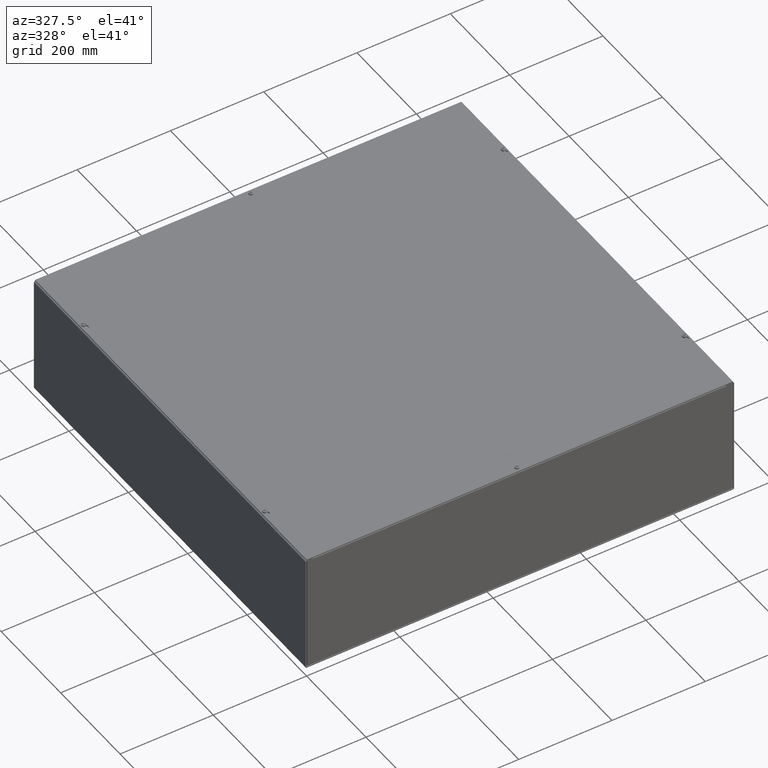
[diagram: clean part render]
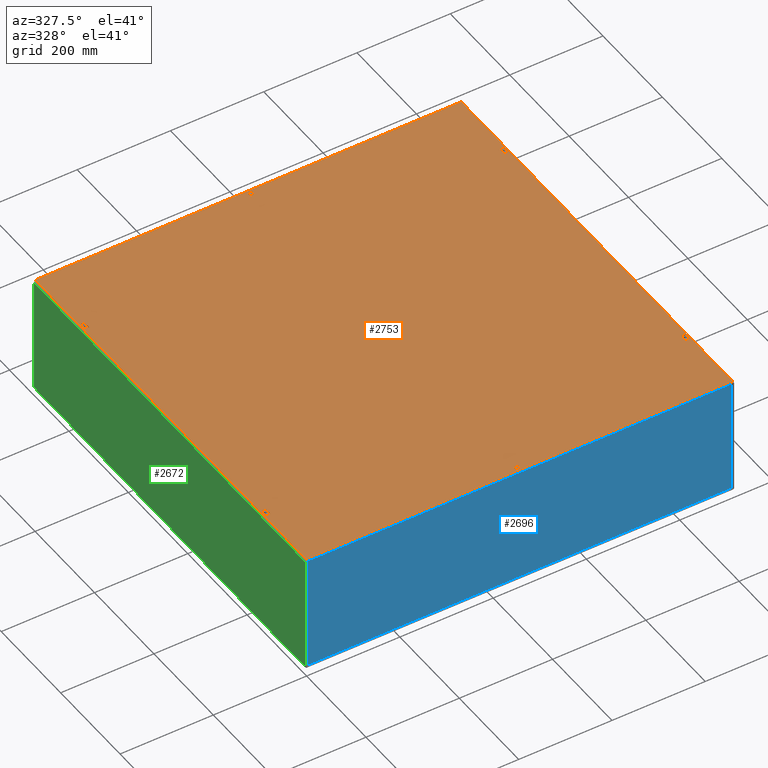
[diagram: same view with three faces highlighted in distinct colors, each labeled with its STEP entity id]
A machine part, auxiliary view with three faces highlighted in distinct colors.
Their STEP definitions:

[orange] entity #2753 — the highlighted planar face has unit normal (-0, -0, 1).
#205=PLANE('',#2979);
#372=LINE('',#4347,#592);
#376=LINE('',#4359,#596);
#380=LINE('',#4371,#600);
#384=LINE('',#4383,#604);
#388=LINE('',#4395,#608);
#392=LINE('',#4407,#612);
#396=LINE('',#4419,#616);
#400=LINE('',#4431,#620);
#402=LINE('',#4439,#622);
#406=LINE('',#4447,#626);
#409=LINE('',#4453,#629);
#412=LINE('',#4458,#632);
#592=VECTOR('',#3490,0.26995740404738);
#596=VECTOR('',#3502,0.269957404047382);
#600=VECTOR('',#3514,0.269957404047378);
#604=VECTOR('',#3526,0.26995740404738);
#608=VECTOR('',#3538,0.26995740404738);
#612=VECTOR('',#3550,0.269957404047381);
#616=VECTOR('',#3562,0.26995740404738);
#620=VECTOR('',#3574,0.269957404047382);
#622=VECTOR('',#3584,36.);
#626=VECTOR('',#3590,36.);
#629=VECTOR('',#3595,36.);
#632=VECTOR('',#3600,36.);
#710=FACE_BOUND('',#1019,.T.);
#711=FACE_BOUND('',#1020,.T.);
#712=FACE_BOUND('',#1021,.T.);
#713=FACE_BOUND('',#1022,.T.);
#714=FACE_BOUND('',#1023,.T.);
#715=FACE_BOUND('',#1024,.T.);
#716=FACE_BOUND('',#1025,.T.);
#1019=EDGE_LOOP('',(#2250));
#1020=EDGE_LOOP('',(#2251));
#1021=EDGE_LOOP('',(#2252,#2253,#2254,#2255));
#1022=EDGE_LOOP('',(#2256,#2257,#2258,#2259));
#1023=EDGE_LOOP('',(#2260,#2261,#2262,#2263));
#1024=EDGE_LOOP('',(#2264,#2265,#2266,#2267));
#1025=EDGE_LOOP('',(#2268,#2269,#2270,#2271));
#1113=CIRCLE('',#2938,0.156);
#1115=CIRCLE('',#2941,0.156);
#1117=CIRCLE('',#2945,0.203);
#1119=CIRCLE('',#2949,0.125);
#1121=CIRCLE('',#2953,0.203);
#1123=CIRCLE('',#2957,0.125);
#1125=CIRCLE('',#2961,0.203);
#1127=CIRCLE('',#2965,0.125);
#1129=CIRCLE('',#2969,0.203);
#1131=CIRCLE('',#2973,0.125);
#1281=VERTEX_POINT('',#4333);
#1283=VERTEX_POINT('',#4338);
#1286=VERTEX_POINT('',#4344);
#1287=VERTEX_POINT('',#4346);
#1289=VERTEX_POINT('',#4352);
#1291=VERTEX_POINT('',#4358);
#1294=VERTEX_POINT('',#4368);
#1295=VERTEX_POINT('',#4370);
#1297=VERTEX_POINT('',#4376);
#1299=VERTEX_POINT('',#4382);
#1302=VERTEX_POINT('',#4392);
#1303=VERTEX_POINT('',#4394);
#1305=VERTEX_POINT('',#4400);
#1307=VERTEX_POINT('',#4406);
#1310=VERTEX_POINT('',#4416);
#1311=VERTEX_POINT('',#4418);
#1313=VERTEX_POINT('',#4424);
#1315=VERTEX_POINT('',#4430);
#1316=VERTEX_POINT('',#4437);
#1317=VERTEX_POINT('',#4438);
#1320=VERTEX_POINT('',#4446);
#1322=VERTEX_POINT('',#4452);
#1589=EDGE_CURVE('',#1281,#1281,#1113,.T.);
#1591=EDGE_CURVE('',#1283,#1283,#1115,.T.);
#1594=EDGE_CURVE('',#1287,#1286,#372,.T.);
#1597=EDGE_CURVE('',#1289,#1287,#1117,.T.);
#1600=EDGE_CURVE('',#1291,#1289,#376,.T.);
#1603=EDGE_CURVE('',#1286,#1291,#1119,.T.);
#1606=EDGE_CURVE('',#1295,#1294,#380,.T.);
#1609=EDGE_CURVE('',#1297,#1295,#1121,.T.);
#1612=EDGE_CURVE('',#1299,#1297,#384,.T.);
#1615=EDGE_CURVE('',#1294,#1299,#1123,.T.);
#1618=EDGE_CURVE('',#1303,#1302,#388,.T.);
#1621=EDGE_CURVE('',#1305,#1303,#1125,.T.);
#1624=EDGE_CURVE('',#1307,#1305,#392,.T.);
#1627=EDGE_CURVE('',#1302,#1307,#1127,.T.);
#1630=EDGE_CURVE('',#1311,#1310,#396,.T.);
#1633=EDGE_CURVE('',#1313,#1311,#1129,.T.);
#1636=EDGE_CURVE('',#1315,#1313,#400,.T.);
#1639=EDGE_CURVE('',#1310,#1315,#1131,.T.);
#1640=EDGE_CURVE('',#1316,#1317,#402,.T.);
#1644=EDGE_CURVE('',#1317,#1320,#406,.T.);
#1647=EDGE_CURVE('',#1320,#1322,#409,.T.);
#1650=EDGE_CURVE('',#1322,#1316,#412,.T.);
#2250=ORIENTED_EDGE('',*,*,#1589,.T.);
#2251=ORIENTED_EDGE('',*,*,#1591,.T.);
#2252=ORIENTED_EDGE('',*,*,#1594,.T.);
#2253=ORIENTED_EDGE('',*,*,#1603,.T.);
#2254=ORIENTED_EDGE('',*,*,#1600,.T.);
#2255=ORIENTED_EDGE('',*,*,#1597,.T.);
#2256=ORIENTED_EDGE('',*,*,#1606,.T.);
#2257=ORIENTED_EDGE('',*,*,#1615,.T.);
#2258=ORIENTED_EDGE('',*,*,#1612,.T.);
#2259=ORIENTED_EDGE('',*,*,#1609,.T.);
#2260=ORIENTED_EDGE('',*,*,#1618,.T.);
#2261=ORIENTED_EDGE('',*,*,#1627,.T.);
#2262=ORIENTED_EDGE('',*,*,#1624,.T.);
#2263=ORIENTED_EDGE('',*,*,#1621,.T.);
#2264=ORIENTED_EDGE('',*,*,#1630,.T.);
#2265=ORIENTED_EDGE('',*,*,#1639,.T.);
#2266=ORIENTED_EDGE('',*,*,#1636,.T.);
#2267=ORIENTED_EDGE('',*,*,#1633,.T.);
#2268=ORIENTED_EDGE('',*,*,#1640,.F.);
#2269=ORIENTED_EDGE('',*,*,#1650,.F.);
#2270=ORIENTED_EDGE('',*,*,#1647,.F.);
#2271=ORIENTED_EDGE('',*,*,#1644,.F.);
#2753=ADVANCED_FACE('',(#710,#711,#712,#713,#714,#715,#716),#205,.T.);
#2938=AXIS2_PLACEMENT_3D('',#4334,#3478,#3479);
#2941=AXIS2_PLACEMENT_3D('',#4339,#3484,#3485);
#2945=AXIS2_PLACEMENT_3D('',#4353,#3496,#3497);
#2949=AXIS2_PLACEMENT_3D('',#4363,#3508,#3509);
#2953=AXIS2_PLACEMENT_3D('',#4377,#3520,#3521);
#2957=AXIS2_PLACEMENT_3D('',#4387,#3532,#3533);
#2961=AXIS2_PLACEMENT_3D('',#4401,#3544,#3545);
#2965=AXIS2_PLACEMENT_3D('',#4411,#3556,#3557);
#2969=AXIS2_PLACEMENT_3D('',#4425,#3568,#3569);
#2973=AXIS2_PLACEMENT_3D('',#4435,#3580,#3581);
#2979=AXIS2_PLACEMENT_3D('',#4461,#3604,#3605);
#3478=DIRECTION('center_axis',(0.,0.,-1.));
#3479=DIRECTION('ref_axis',(-1.,0.,0.));
#3484=DIRECTION('center_axis',(0.,0.,-1.));
#3485=DIRECTION('ref_axis',(-1.,0.,0.));
#3490=DIRECTION('',(0.277580071174384,0.960702505506686,0.));
#3496=DIRECTION('center_axis',(0.,0.,-1.));
#3497=DIRECTION('ref_axis',(-0.96070250550669,0.277580071174369,0.));
#3502=DIRECTION('',(0.277580071174384,-0.960702505506686,0.));
#3508=DIRECTION('center_axis',(0.,0.,-1.));
#3509=DIRECTION('ref_axis',(0.960702505506687,0.277580071174379,0.));
#3514=DIRECTION('',(0.277580071174384,0.960702505506686,0.));
#3520=DIRECTION('center_axis',(0.,0.,-1.));
#3521=DIRECTION('ref_axis',(-0.96070250550669,0.277580071174369,0.));
#3526=DIRECTION('',(0.277580071174384,-0.960702505506686,0.));
#3532=DIRECTION('center_axis',(0.,0.,-1.));
#3533=DIRECTION('ref_axis',(0.960702505506687,0.277580071174379,0.));
#3538=DIRECTION('',(0.277580071174384,0.960702505506686,0.));
#3544=DIRECTION('center_axis',(0.,0.,-1.));
#3545=DIRECTION('ref_axis',(-0.96070250550669,0.277580071174369,0.));
#3550=DIRECTION('',(0.277580071174384,-0.960702505506686,0.));
#3556=DIRECTION('center_axis',(0.,0.,-1.));
#3557=DIRECTION('ref_axis',(0.960702505506687,0.277580071174379,0.));
#3562=DIRECTION('',(0.277580071174384,0.960702505506686,0.));
#3568=DIRECTION('center_axis',(0.,0.,-1.));
#3569=DIRECTION('ref_axis',(-0.96070250550669,0.277580071174369,0.));
#3574=DIRECTION('',(0.277580071174384,-0.960702505506686,0.));
#3580=DIRECTION('center_axis',(0.,0.,-1.));
#3581=DIRECTION('ref_axis',(0.960702505506687,0.277580071174379,0.));
#3584=DIRECTION('',(-3.06161699786838E-016,1.,0.));
#3590=DIRECTION('',(1.,1.554117969729E-016,0.));
#3595=DIRECTION('',(1.554117969729E-016,-1.,0.));
#3600=DIRECTION('',(-1.,0.,0.));
#3604=DIRECTION('center_axis',(0.,0.,1.));
#3605=DIRECTION('ref_axis',(1.,0.,0.));
#4333=CARTESIAN_POINT('',(18.156,35.625,0.09375));
#4334=CARTESIAN_POINT('Origin',(18.,35.625,0.09375));
#4338=CARTESIAN_POINT('',(18.156,0.375,0.09375));
#4339=CARTESIAN_POINT('Origin',(18.,0.375,0.09375));
#4344=CARTESIAN_POINT('',(35.5674121868117,6.0346975088968,0.09375));
#4346=CARTESIAN_POINT('',(35.4924773913821,5.7753487544484,0.09375));
#4347=CARTESIAN_POINT('',(36.4860263139652,9.21401398437914,0.09375));
#4352=CARTESIAN_POINT('',(35.8825226086178,5.7753487544484,0.09375));
#4353=CARTESIAN_POINT('Origin',(35.6875,5.71900000000001,0.09375));
#4358=CARTESIAN_POINT('',(35.8075878131883,6.0346975088968,0.09375));
#4359=CARTESIAN_POINT('',(33.5636068997852,13.8010983052321,0.09375));
#4363=CARTESIAN_POINT('Origin',(35.6875,6.,0.09375));
#4368=CARTESIAN_POINT('',(0.192412186811655,6.0346975088968,0.09375));
#4370=CARTESIAN_POINT('',(0.117477391382132,5.7753487544484,0.09375));
#4371=CARTESIAN_POINT('',(2.47386049792953,13.9307726824563,0.09375));
#4376=CARTESIAN_POINT('',(0.507522608617848,5.7753487544484,0.09375));
#4377=CARTESIAN_POINT('Origin',(0.31249999999999,5.719,0.09375));
#4382=CARTESIAN_POINT('',(0.432587813188324,6.0346975088968,0.09375));
#4383=CARTESIAN_POINT('',(-0.448558916250494,9.08433960715494,0.09375));
#4387=CARTESIAN_POINT('Origin',(0.31249999999999,6.,0.09375));
#4392=CARTESIAN_POINT('',(35.5674121868117,30.0346975088968,0.09375));
#4394=CARTESIAN_POINT('',(35.4924773913821,29.7753487544484,0.09375));
#4395=CARTESIAN_POINT('',(33.2859638756938,22.1386223353373,0.09375));
#4400=CARTESIAN_POINT('',(35.8825226086178,29.7753487544484,0.09375));
#4401=CARTESIAN_POINT('Origin',(35.6875,29.719,0.09375));
#4406=CARTESIAN_POINT('',(35.8075878131883,30.0346975088968,0.09375));
#4407=CARTESIAN_POINT('',(36.7636693380567,26.7257066561903,0.09375));
#4411=CARTESIAN_POINT('Origin',(35.6875,30.,0.09375));
#4416=CARTESIAN_POINT('',(0.192412186811657,30.0346975088968,0.09375));
#4418=CARTESIAN_POINT('',(0.117477391382133,29.7753487544484,0.09375));
#4419=CARTESIAN_POINT('',(-0.726201940341922,26.8553810334145,0.09375));
#4424=CARTESIAN_POINT('',(0.507522608617849,29.7753487544484,0.09375));
#4425=CARTESIAN_POINT('Origin',(0.312499999999991,29.719,0.09375));
#4430=CARTESIAN_POINT('',(0.432587813188326,30.0346975088968,0.09375));
#4431=CARTESIAN_POINT('',(2.75150352202097,22.0089479581131,0.09375));
#4435=CARTESIAN_POINT('Origin',(0.312499999999991,30.,0.09375));
#4437=CARTESIAN_POINT('',(0.,0.,0.09375));
#4438=CARTESIAN_POINT('',(-1.10218211923262E-014,36.,0.09375));
#4439=CARTESIAN_POINT('',(-1.10218211923262E-014,36.,0.09375));
#4446=CARTESIAN_POINT('',(36.,36.,0.09375));
#4447=CARTESIAN_POINT('',(36.,36.,0.09375));
#4452=CARTESIAN_POINT('',(36.,0.,0.09375));
#4453=CARTESIAN_POINT('',(36.,0.,0.09375));
#4458=CARTESIAN_POINT('',(0.,0.,0.09375));
#4461=CARTESIAN_POINT('Origin',(18.,18.,0.09375));

[blue] entity #2696 — the highlighted planar face has unit normal (0, 1, -0).
#168=PLANE('',#2901);
#287=LINE('',#4010,#507);
#302=LINE('',#4046,#522);
#305=LINE('',#4053,#525);
#309=LINE('',#4060,#529);
#311=LINE('',#4064,#531);
#312=LINE('',#4066,#532);
#313=LINE('',#4068,#533);
#314=LINE('',#4070,#534);
#315=LINE('',#4072,#535);
#316=LINE('',#4074,#536);
#317=LINE('',#4076,#537);
#318=LINE('',#4077,#538);
#507=VECTOR('',#3293,34.7813);
#522=VECTOR('',#3332,0.000199999999999981);
#525=VECTOR('',#3337,0.0157999999999999);
#529=VECTOR('',#3343,0.000199999999999981);
#531=VECTOR('',#3347,0.000199999999999981);
#532=VECTOR('',#3348,0.000199999999998583);
#533=VECTOR('',#3349,0.0157999999999999);
#534=VECTOR('',#3350,0.4998);
#535=VECTOR('',#3351,9.7969);
#536=VECTOR('',#3352,35.7813);
#537=VECTOR('',#3353,9.7969);
#538=VECTOR('',#3354,0.4998);
#772=FACE_OUTER_BOUND('',#954,.T.);
#954=EDGE_LOOP('',(#1992,#1993,#1994,#1995,#1996,#1997,#1998,#1999,#2000,
#2001,#2002,#2003));
#1226=VERTEX_POINT('',#4007);
#1227=VERTEX_POINT('',#4009);
#1236=VERTEX_POINT('',#4045);
#1238=VERTEX_POINT('',#4051);
#1239=VERTEX_POINT('',#4052);
#1242=VERTEX_POINT('',#4063);
#1243=VERTEX_POINT('',#4065);
#1244=VERTEX_POINT('',#4067);
#1245=VERTEX_POINT('',#4069);
#1246=VERTEX_POINT('',#4071);
#1247=VERTEX_POINT('',#4073);
#1248=VERTEX_POINT('',#4075);
#1490=EDGE_CURVE('',#1227,#1226,#287,.T.);
#1508=EDGE_CURVE('',#1236,#1227,#302,.T.);
#1511=EDGE_CURVE('',#1238,#1239,#305,.T.);
#1515=EDGE_CURVE('',#1239,#1236,#309,.T.);
#1517=EDGE_CURVE('',#1226,#1242,#311,.T.);
#1518=EDGE_CURVE('',#1242,#1243,#312,.T.);
#1519=EDGE_CURVE('',#1243,#1244,#313,.T.);
#1520=EDGE_CURVE('',#1245,#1244,#314,.T.);
#1521=EDGE_CURVE('',#1245,#1246,#315,.T.);
#1522=EDGE_CURVE('',#1246,#1247,#316,.T.);
#1523=EDGE_CURVE('',#1247,#1248,#317,.T.);
#1524=EDGE_CURVE('',#1238,#1248,#318,.T.);
#1992=ORIENTED_EDGE('',*,*,#1511,.T.);
#1993=ORIENTED_EDGE('',*,*,#1515,.T.);
#1994=ORIENTED_EDGE('',*,*,#1508,.T.);
#1995=ORIENTED_EDGE('',*,*,#1490,.T.);
#1996=ORIENTED_EDGE('',*,*,#1517,.T.);
#1997=ORIENTED_EDGE('',*,*,#1518,.T.);
#1998=ORIENTED_EDGE('',*,*,#1519,.T.);
#1999=ORIENTED_EDGE('',*,*,#1520,.F.);
#2000=ORIENTED_EDGE('',*,*,#1521,.T.);
#2001=ORIENTED_EDGE('',*,*,#1522,.T.);
#2002=ORIENTED_EDGE('',*,*,#1523,.T.);
#2003=ORIENTED_EDGE('',*,*,#1524,.F.);
#2696=ADVANCED_FACE('',(#772),#168,.F.);
#2901=AXIS2_PLACEMENT_3D('',#4062,#3345,#3346);
#3293=DIRECTION('',(1.,8.04286310607196E-017,0.));
#3332=DIRECTION('',(0.,1.,0.));
#3337=DIRECTION('',(0.,-1.,0.));
#3343=DIRECTION('',(1.,0.,0.));
#3345=DIRECTION('center_axis',(0.,0.,1.));
#3346=DIRECTION('ref_axis',(1.,0.,0.));
#3347=DIRECTION('',(0.,-1.,0.));
#3348=DIRECTION('',(1.,0.,0.));
#3349=DIRECTION('',(0.,1.,0.));
#3350=DIRECTION('',(-1.,-1.16558847729675E-016,0.));
#3351=DIRECTION('',(0.,-1.,0.));
#3352=DIRECTION('',(-1.,0.,0.));
#3353=DIRECTION('',(-3.05617634257371E-016,1.,0.));
#3354=DIRECTION('',(-1.,-1.16558847729675E-016,0.));
#4007=CARTESIAN_POINT('',(35.39065,9.89065,2.18547839493141E-017));
#4009=CARTESIAN_POINT('',(0.609349999999997,9.89065,2.18547839493141E-017));
#4010=CARTESIAN_POINT('',(9.304675,9.89065,0.));
#4045=CARTESIAN_POINT('',(0.609349999999997,9.89045,1.09273919746571E-017));
#4046=CARTESIAN_POINT('',(0.609349999999996,7.4217875,0.));
#4051=CARTESIAN_POINT('',(0.609149999999997,9.90625,1.09273919746571E-017));
#4052=CARTESIAN_POINT('',(0.609149999999997,9.89045,1.09273919746571E-017));
#4053=CARTESIAN_POINT('',(0.609149999999997,7.4296875,0.));
#4060=CARTESIAN_POINT('',(9.304575,9.89045,0.));
#4062=CARTESIAN_POINT('Origin',(18.,4.953125,0.));
#4063=CARTESIAN_POINT('',(35.39065,9.89045,1.09273919746571E-017));
#4064=CARTESIAN_POINT('',(35.39065,7.4296875,0.));
#4065=CARTESIAN_POINT('',(35.39085,9.89045,1.09273919746571E-017));
#4066=CARTESIAN_POINT('',(26.695325,9.89045,0.));
#4067=CARTESIAN_POINT('',(35.39085,9.90625,1.09273919746571E-017));
#4068=CARTESIAN_POINT('',(35.39085,7.4217875,0.));
#4069=CARTESIAN_POINT('',(35.89065,9.90625,0.));
#4070=CARTESIAN_POINT('',(36.,9.90625,0.));
#4071=CARTESIAN_POINT('',(35.89065,0.10935,1.09273919746571E-017));
#4072=CARTESIAN_POINT('',(35.89065,7.4296875,0.));
#4073=CARTESIAN_POINT('',(0.10935,0.10935,1.09273919746571E-017));
#4074=CARTESIAN_POINT('',(26.945325,0.10935,0.));
#4075=CARTESIAN_POINT('',(0.109349999999997,9.90625,1.09273919746571E-017));
#4076=CARTESIAN_POINT('',(0.109349999999999,2.5312375,0.));
#4077=CARTESIAN_POINT('',(36.,9.90625,0.));

[green] entity #2672 — the highlighted planar face has unit normal (1, 0, 0).
#150=PLANE('',#2866);
#227=LINE('',#3850,#447);
#267=LINE('',#3944,#487);
#270=LINE('',#3951,#490);
#272=LINE('',#3954,#492);
#447=VECTOR('',#3117,36.);
#487=VECTOR('',#3213,9.87505000000001);
#490=VECTOR('',#3220,9.87505);
#492=VECTOR('',#3224,36.);
#752=FACE_OUTER_BOUND('',#919,.T.);
#919=EDGE_LOOP('',(#1888,#1889,#1890,#1891));
#1184=VERTEX_POINT('',#3847);
#1185=VERTEX_POINT('',#3849);
#1211=VERTEX_POINT('',#3942);
#1213=VERTEX_POINT('',#3950);
#1412=EDGE_CURVE('',#1185,#1184,#227,.T.);
#1459=EDGE_CURVE('',#1211,#1184,#267,.T.);
#1462=EDGE_CURVE('',#1185,#1213,#270,.T.);
#1464=EDGE_CURVE('',#1211,#1213,#272,.T.);
#1888=ORIENTED_EDGE('',*,*,#1412,.T.);
#1889=ORIENTED_EDGE('',*,*,#1459,.F.);
#1890=ORIENTED_EDGE('',*,*,#1464,.T.);
#1891=ORIENTED_EDGE('',*,*,#1462,.F.);
#2672=ADVANCED_FACE('',(#752),#150,.F.);
#2866=AXIS2_PLACEMENT_3D('',#3968,#3240,#3241);
#3117=DIRECTION('',(-3.06057925883945E-016,1.,3.10823593945801E-016));
#3213=DIRECTION('',(-2.83276944882399E-016,-9.86076131526265E-032,1.));
#3220=DIRECTION('',(2.7009821958931E-016,3.06161699786838E-016,-1.));
#3224=DIRECTION('',(3.06057925883945E-016,-1.,-2.93967541701169E-035));
#3240=DIRECTION('center_axis',(1.,3.06057925883945E-016,2.82840956217107E-016));
#3241=DIRECTION('ref_axis',(2.8199664825479E-016,0.,-1.));
#3847=CARTESIAN_POINT('',(-0.0937500000000138,36.,9.98440000000001));
#3849=CARTESIAN_POINT('',(-0.0937500000000028,2.27094983156052E-017,9.9844));
#3850=CARTESIAN_POINT('',(-0.0937500000000055,9.,9.9844));
#3942=CARTESIAN_POINT('',(-0.093750000000011,36.,0.10935));
#3944=CARTESIAN_POINT('',(-0.093750000000011,36.,0.109350000000011));
#3950=CARTESIAN_POINT('',(-0.09375,-2.73399397307767E-017,0.10935));
#3951=CARTESIAN_POINT('',(-0.0937499999999999,2.73403997382652E-017,-0.0692495423565798));
#3954=CARTESIAN_POINT('',(-0.0937500000000055,18.,0.10935));
#3968=CARTESIAN_POINT('Origin',(-0.0937500000000069,18.,5.01002511441086));